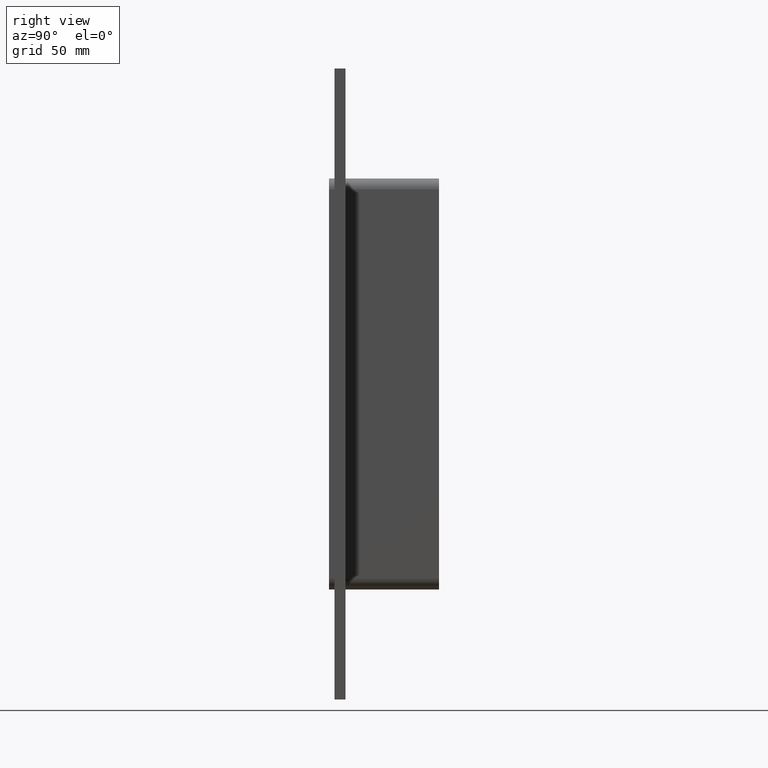
[diagram: clean part render]
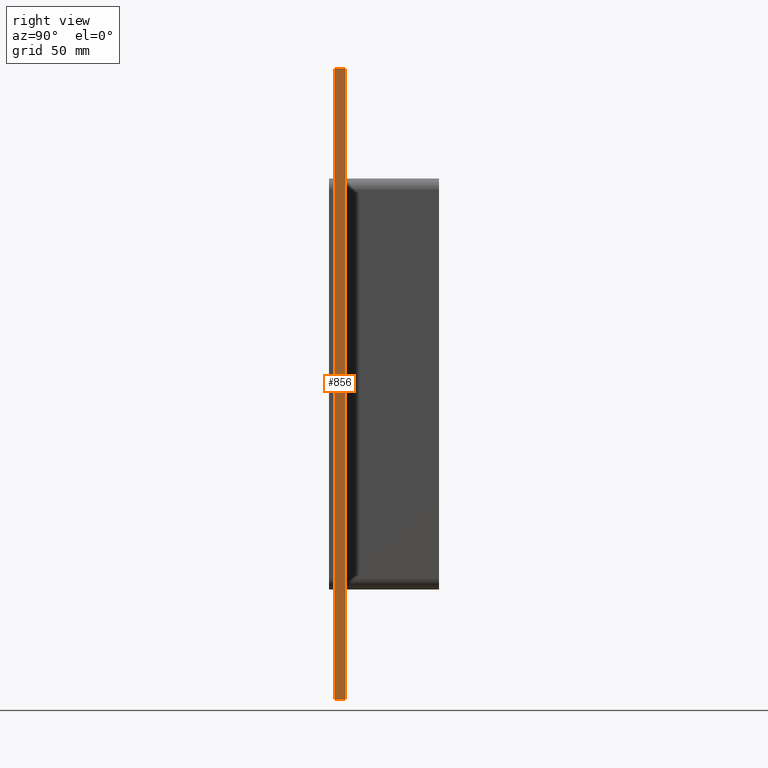
[diagram: same view with one face highlighted and labeled with its STEP entity id]
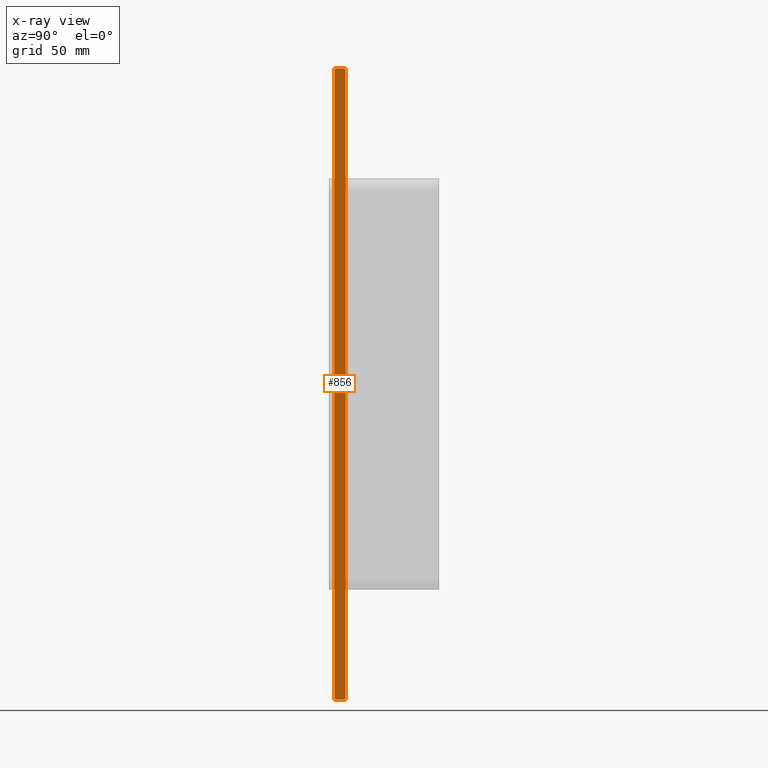
[diagram: x-ray of the same camera — body ghosted, the highlighted face saturated]
A machine part, right view. The second image highlights one B-rep face of the part: STEP entity #856.
The next image is the same camera in x-ray: the body ghosted, the highlighted face saturated — about 0% of this face is hidden behind the body in this view.
In plain terms, the highlighted planar face has unit normal (1, 0, 0).
Its self-contained STEP definition (entity closure, byte-faithful):
#528=CARTESIAN_POINT('',(96.25,6.000000000000001,172.00000000000003));
#529=VERTEX_POINT('',#528);
#536=CARTESIAN_POINT('',(96.25,6.000000000000001,-171.99999999999994));
#537=VERTEX_POINT('',#536);
#538=CARTESIAN_POINT('',(96.25,6.000000000000001,172.00000000000003));
#539=DIRECTION('',(0.0,0.0,-1.0));
#540=VECTOR('',#539,344.0);
#541=LINE('',#538,#540);
#542=EDGE_CURVE('',#529,#537,#541,.T.);
#668=CARTESIAN_POINT('',(96.25,0.0,172.00000000000003));
#669=VERTEX_POINT('',#668);
#684=CARTESIAN_POINT('',(96.25,0.0,-171.99999999999994));
#685=VERTEX_POINT('',#684);
#692=CARTESIAN_POINT('',(96.25,0.0,172.00000000000003));
#693=DIRECTION('',(0.0,0.0,-1.0));
#694=VECTOR('',#693,344.0);
#695=LINE('',#692,#694);
#696=EDGE_CURVE('',#669,#685,#695,.T.);
#831=CARTESIAN_POINT('',(96.25,0.0,-171.99999999999994));
#832=DIRECTION('',(0.0,1.0,0.0));
#833=VECTOR('',#832,6.000000000000001);
#834=LINE('',#831,#833);
#835=EDGE_CURVE('',#685,#537,#834,.T.);
#840=CARTESIAN_POINT('',(96.25,0.0,172.00000000000003));
#841=DIRECTION('',(1.0,0.0,0.0));
#842=DIRECTION('',(0.0,0.0,-1.0));
#843=AXIS2_PLACEMENT_3D('',#840,#841,#842);
#844=PLANE('',#843);
#845=ORIENTED_EDGE('',*,*,#696,.T.);
#846=ORIENTED_EDGE('',*,*,#835,.T.);
#847=ORIENTED_EDGE('',*,*,#542,.F.);
#848=CARTESIAN_POINT('',(96.25,0.0,172.00000000000003));
#849=DIRECTION('',(0.0,1.0,0.0));
#850=VECTOR('',#849,6.000000000000001);
#851=LINE('',#848,#850);
#852=EDGE_CURVE('',#669,#529,#851,.T.);
#853=ORIENTED_EDGE('',*,*,#852,.F.);
#854=EDGE_LOOP('',(#845,#846,#847,#853));
#855=FACE_OUTER_BOUND('',#854,.T.);
#856=ADVANCED_FACE('',(#855),#844,.T.);